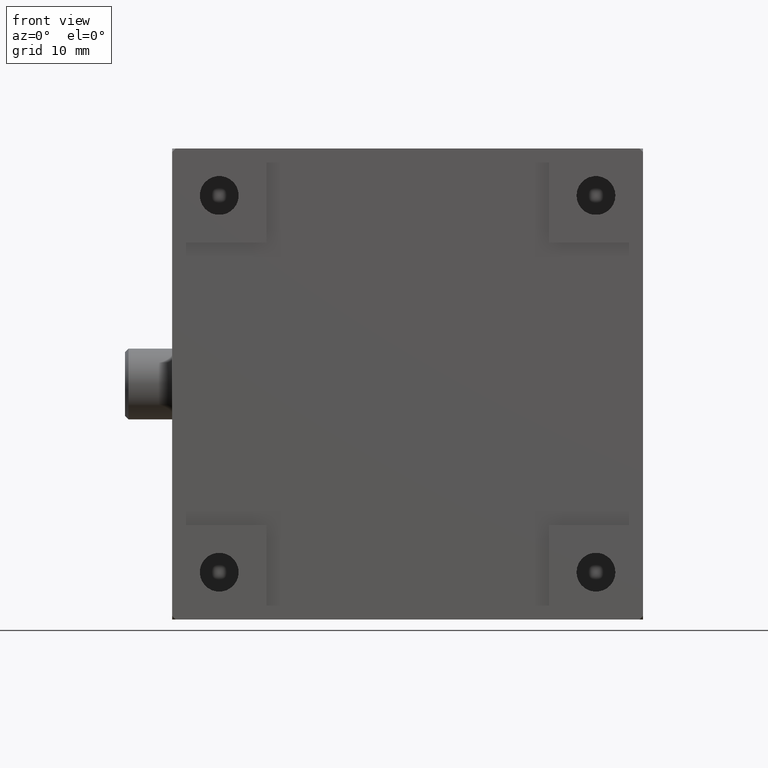
[diagram: clean part render]
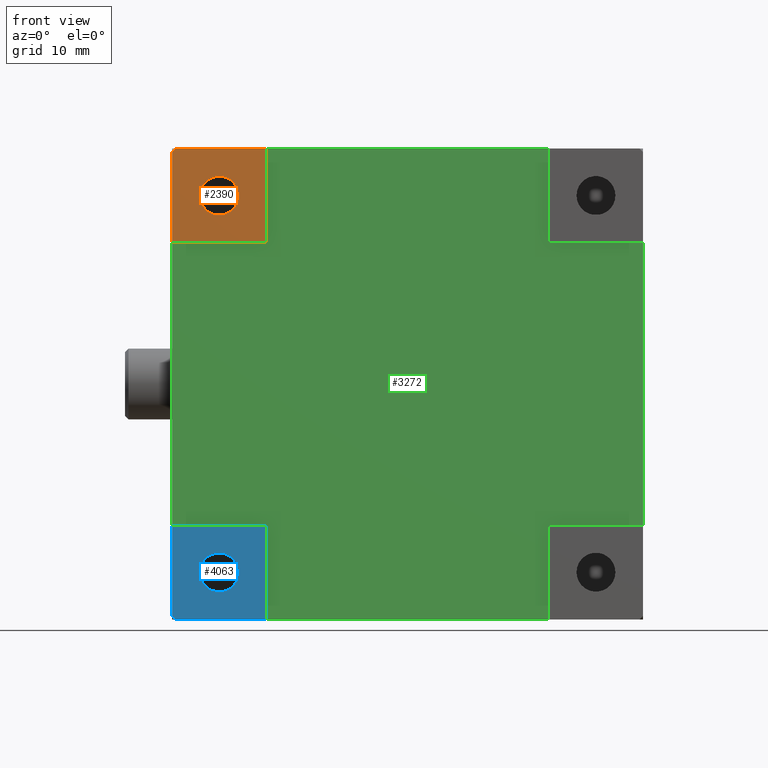
[diagram: same view with three faces highlighted in distinct colors, each labeled with its STEP entity id]
A machine part, front view with three faces highlighted in distinct colors.
Their STEP definitions:

[orange] entity #2390 — the highlighted planar face has unit normal (0, 1, 0).
#156 = EDGE_CURVE ( 'NONE', #1058, #532, #2311, .T. ) ;
#246 = EDGE_CURVE ( 'NONE', #692, #532, #2472, .T. ) ;
#301 = CARTESIAN_POINT ( 'NONE',  ( 8.000000000000000000, 0.000000000000000000, 32.00000000000000000 ) ) ;
#302 = CARTESIAN_POINT ( 'NONE',  ( -4.336808689942018722E-16, 0.000000000000000000, 39.69999999999999574 ) ) ;
#347 = AXIS2_PLACEMENT_3D ( 'NONE', #2180, #3741, #878 ) ;
#422 = PLANE ( 'NONE',  #347 ) ;
#467 = DIRECTION ( 'NONE',  ( -0.7071067811865510144, 0.000000000000000000, -0.7071067811865441310 ) ) ;
#470 = FACE_OUTER_BOUND ( 'NONE', #4639, .T. ) ;
#532 = VERTEX_POINT ( 'NONE', #1102 ) ;
#692 = VERTEX_POINT ( 'NONE', #4527 ) ;
#728 = CARTESIAN_POINT ( 'NONE',  ( 0.000000000000000000, 0.000000000000000000, 0.3000000000000109801 ) ) ;
#833 = CARTESIAN_POINT ( 'NONE',  ( 0.000000000000000000, 0.000000000000000000, 32.00000000000000000 ) ) ;
#878 = DIRECTION ( 'NONE',  ( -1.000000000000000000, 0.000000000000000000, 0.000000000000000000 ) ) ;
#1042 = LINE ( 'NONE', #301, #2109 ) ;
#1058 = VERTEX_POINT ( 'NONE', #302 ) ;
#1102 = CARTESIAN_POINT ( 'NONE',  ( 0.000000000000000000, 0.000000000000000000, 32.00000000000000000 ) ) ;
#1305 = ORIENTED_EDGE ( 'NONE', *, *, #2519, .F. ) ;
#1611 = VECTOR ( 'NONE', #467, 999.9999999999998863 ) ;
#1635 = VERTEX_POINT ( 'NONE', #3210 ) ;
#1665 = LINE ( 'NONE', #4881, #1611 ) ;
#1666 = DIRECTION ( 'NONE',  ( 1.000000000000000000, 0.000000000000000000, 0.000000000000000000 ) ) ;
#1777 = LINE ( 'NONE', #2564, #3516 ) ;
#1877 = CARTESIAN_POINT ( 'NONE',  ( 0.3000000000000093703, 0.000000000000000000, 40.00000000000000711 ) ) ;
#1878 = ORIENTED_EDGE ( 'NONE', *, *, #2211, .T. ) ;
#2109 = VECTOR ( 'NONE', #3484, 1000.000000000000000 ) ;
#2180 = CARTESIAN_POINT ( 'NONE',  ( 0.000000000000000000, 0.000000000000000000, 0.000000000000000000 ) ) ;
#2211 = EDGE_CURVE ( 'NONE', #2730, #3705, #1777, .T. ) ;
#2286 = DIRECTION ( 'NONE',  ( 0.000000000000000000, 0.000000000000000000, -1.000000000000000000 ) ) ;
#2311 = LINE ( 'NONE', #728, #4136 ) ;
#2390 = ADVANCED_FACE ( 'NONE', ( #470, #4809 ), #422, .F. ) ;
#2472 = LINE ( 'NONE', #833, #4632 ) ;
#2519 = EDGE_CURVE ( 'NONE', #2730, #692, #1042, .T. ) ;
#2564 = CARTESIAN_POINT ( 'NONE',  ( 0.3000000000000109801, 0.000000000000000000, 40.00000000000000000 ) ) ;
#2730 = VERTEX_POINT ( 'NONE', #3267 ) ;
#2962 = CARTESIAN_POINT ( 'NONE',  ( 4.000000000000000000, 0.000000000000000000, 36.00000000000000711 ) ) ;
#3011 = EDGE_CURVE ( 'NONE', #3705, #1058, #1665, .T. ) ;
#3042 = EDGE_LOOP ( 'NONE', ( #3504 ) ) ;
#3210 = CARTESIAN_POINT ( 'NONE',  ( 5.650000000000000355, 0.000000000000000000, 36.00000000000000711 ) ) ;
#3267 = CARTESIAN_POINT ( 'NONE',  ( 8.000000000000000000, 0.000000000000000000, 40.00000000000000000 ) ) ;
#3325 = CIRCLE ( 'NONE', #4651, 1.650000000000000355 ) ;
#3484 = DIRECTION ( 'NONE',  ( 0.000000000000000000, 0.000000000000000000, -1.000000000000000000 ) ) ;
#3504 = ORIENTED_EDGE ( 'NONE', *, *, #3900, .F. ) ;
#3516 = VECTOR ( 'NONE', #4887, 1000.000000000000000 ) ;
#3705 = VERTEX_POINT ( 'NONE', #1877 ) ;
#3741 = DIRECTION ( 'NONE',  ( 0.000000000000000000, 1.000000000000000000, 0.000000000000000000 ) ) ;
#3881 = ORIENTED_EDGE ( 'NONE', *, *, #3011, .T. ) ;
#3900 = EDGE_CURVE ( 'NONE', #1635, #1635, #3325, .T. ) ;
#3909 = ORIENTED_EDGE ( 'NONE', *, *, #246, .F. ) ;
#3969 = DIRECTION ( 'NONE',  ( -1.000000000000000000, 0.000000000000000000, 0.000000000000000000 ) ) ;
#4136 = VECTOR ( 'NONE', #2286, 1000.000000000000000 ) ;
#4206 = ORIENTED_EDGE ( 'NONE', *, *, #156, .T. ) ;
#4527 = CARTESIAN_POINT ( 'NONE',  ( 8.000000000000000000, 0.000000000000000000, 32.00000000000000000 ) ) ;
#4545 = DIRECTION ( 'NONE',  ( 0.000000000000000000, -1.000000000000000000, 0.000000000000000000 ) ) ;
#4632 = VECTOR ( 'NONE', #3969, 1000.000000000000000 ) ;
#4639 = EDGE_LOOP ( 'NONE', ( #1305, #1878, #3881, #4206, #3909 ) ) ;
#4651 = AXIS2_PLACEMENT_3D ( 'NONE', #2962, #4545, #1666 ) ;
#4809 = FACE_BOUND ( 'NONE', #3042, .T. ) ;
#4881 = CARTESIAN_POINT ( 'NONE',  ( 0.000000000000000000, 0.000000000000000000, 39.70000000000000284 ) ) ;
#4887 = DIRECTION ( 'NONE',  ( -1.000000000000000000, 0.000000000000000000, 0.000000000000000000 ) ) ;

[blue] entity #4063 — the highlighted planar face has unit normal (0, 1, 0).
#28 = DIRECTION ( 'NONE',  ( 0.7071067811865474617, 0.000000000000000000, -0.7071067811865474617 ) ) ;
#77 = DIRECTION ( 'NONE',  ( 1.000000000000000000, 0.000000000000000000, 0.000000000000000000 ) ) ;
#83 = LINE ( 'NONE', #4073, #314 ) ;
#108 = DIRECTION ( 'NONE',  ( 0.000000000000000000, 0.000000000000000000, -1.000000000000000000 ) ) ;
#314 = VECTOR ( 'NONE', #108, 1000.000000000000000 ) ;
#480 = EDGE_CURVE ( 'NONE', #2197, #2197, #4457, .T. ) ;
#617 = CARTESIAN_POINT ( 'NONE',  ( 8.000000000000000000, 0.000000000000000000, 8.000000000000000000 ) ) ;
#674 = VECTOR ( 'NONE', #2734, 1000.000000000000000 ) ;
#694 = ORIENTED_EDGE ( 'NONE', *, *, #1505, .T. ) ;
#742 = ORIENTED_EDGE ( 'NONE', *, *, #2585, .F. ) ;
#976 = EDGE_CURVE ( 'NONE', #4777, #2891, #3086, .T. ) ;
#1069 = DIRECTION ( 'NONE',  ( 1.000000000000000000, 0.000000000000000000, 0.000000000000000000 ) ) ;
#1126 = CARTESIAN_POINT ( 'NONE',  ( 0.3000000000000090927, -2.312964634635742661E-15, 3.269547176401599802E-16 ) ) ;
#1196 = CARTESIAN_POINT ( 'NONE',  ( 0.000000000000000000, 0.000000000000000000, 0.000000000000000000 ) ) ;
#1408 = EDGE_CURVE ( 'NONE', #2100, #2324, #3998, .T. ) ;
#1501 = CARTESIAN_POINT ( 'NONE',  ( 4.000000000000000000, 0.000000000000000000, 4.000000000000000000 ) ) ;
#1502 = CARTESIAN_POINT ( 'NONE',  ( -1.807003620809173954E-17, -2.312964634635742661E-15, 0.3000000000000109801 ) ) ;
#1505 = EDGE_CURVE ( 'NONE', #4777, #2100, #83, .T. ) ;
#1508 = CARTESIAN_POINT ( 'NONE',  ( 5.650000000000000355, 0.000000000000000000, 4.000000000000000000 ) ) ;
#1514 = CARTESIAN_POINT ( 'NONE',  ( 8.000000000000000000, 0.000000000000000000, 8.000000000000000000 ) ) ;
#1617 = AXIS2_PLACEMENT_3D ( 'NONE', #1196, #2035, #4296 ) ;
#1796 = PLANE ( 'NONE',  #1617 ) ;
#1896 = AXIS2_PLACEMENT_3D ( 'NONE', #1501, #4309, #2306 ) ;
#1925 = ORIENTED_EDGE ( 'NONE', *, *, #3520, .T. ) ;
#2035 = DIRECTION ( 'NONE',  ( 0.000000000000000000, 1.000000000000000000, 0.000000000000000000 ) ) ;
#2100 = VERTEX_POINT ( 'NONE', #1502 ) ;
#2155 = EDGE_LOOP ( 'NONE', ( #2194 ) ) ;
#2194 = ORIENTED_EDGE ( 'NONE', *, *, #480, .F. ) ;
#2197 = VERTEX_POINT ( 'NONE', #1508 ) ;
#2306 = DIRECTION ( 'NONE',  ( 1.000000000000000000, 0.000000000000000000, 0.000000000000000000 ) ) ;
#2324 = VERTEX_POINT ( 'NONE', #1126 ) ;
#2335 = VECTOR ( 'NONE', #77, 1000.000000000000000 ) ;
#2341 = LINE ( 'NONE', #2514, #2335 ) ;
#2514 = CARTESIAN_POINT ( 'NONE',  ( 39.70000000000000284, 0.000000000000000000, 0.000000000000000000 ) ) ;
#2562 = CARTESIAN_POINT ( 'NONE',  ( 0.000000000000000000, 0.000000000000000000, 8.000000000000000000 ) ) ;
#2585 = EDGE_CURVE ( 'NONE', #2891, #4725, #3918, .T. ) ;
#2734 = DIRECTION ( 'NONE',  ( 0.000000000000000000, 0.000000000000000000, -1.000000000000000000 ) ) ;
#2777 = CARTESIAN_POINT ( 'NONE',  ( 0.3000000000000109801, -6.938893903907228378E-15, 0.000000000000000000 ) ) ;
#2891 = VERTEX_POINT ( 'NONE', #617 ) ;
#3086 = LINE ( 'NONE', #1514, #4386 ) ;
#3227 = VECTOR ( 'NONE', #28, 1000.000000000000114 ) ;
#3520 = EDGE_CURVE ( 'NONE', #2324, #4725, #2341, .T. ) ;
#3918 = LINE ( 'NONE', #3978, #674 ) ;
#3978 = CARTESIAN_POINT ( 'NONE',  ( 8.000000000000000000, 0.000000000000000000, 0.000000000000000000 ) ) ;
#3988 = CARTESIAN_POINT ( 'NONE',  ( 8.000000000000000000, 0.000000000000000000, 0.000000000000000000 ) ) ;
#3998 = LINE ( 'NONE', #2777, #3227 ) ;
#4063 = ADVANCED_FACE ( 'NONE', ( #5005, #4983 ), #1796, .F. ) ;
#4073 = CARTESIAN_POINT ( 'NONE',  ( 0.000000000000000000, 0.000000000000000000, 0.3000000000000109801 ) ) ;
#4135 = ORIENTED_EDGE ( 'NONE', *, *, #976, .F. ) ;
#4296 = DIRECTION ( 'NONE',  ( -1.000000000000000000, 0.000000000000000000, 0.000000000000000000 ) ) ;
#4309 = DIRECTION ( 'NONE',  ( 0.000000000000000000, -1.000000000000000000, 0.000000000000000000 ) ) ;
#4386 = VECTOR ( 'NONE', #1069, 1000.000000000000000 ) ;
#4457 = CIRCLE ( 'NONE', #1896, 1.650000000000000355 ) ;
#4725 = VERTEX_POINT ( 'NONE', #3988 ) ;
#4777 = VERTEX_POINT ( 'NONE', #2562 ) ;
#4983 = FACE_BOUND ( 'NONE', #2155, .T. ) ;
#5005 = FACE_OUTER_BOUND ( 'NONE', #5062, .T. ) ;
#5062 = EDGE_LOOP ( 'NONE', ( #4135, #694, #5091, #1925, #742 ) ) ;
#5091 = ORIENTED_EDGE ( 'NONE', *, *, #1408, .T. ) ;

[green] entity #3272 — the highlighted planar face has unit normal (0, 1, 0).
#55 = VECTOR ( 'NONE', #4285, 1000.000000000000000 ) ;
#103 = VECTOR ( 'NONE', #2596, 1000.000000000000000 ) ;
#112 = LINE ( 'NONE', #436, #3061 ) ;
#133 = CARTESIAN_POINT ( 'NONE',  ( 32.00000000000000000, 0.5000000000000000000, 8.000000000000000000 ) ) ;
#269 = EDGE_CURVE ( 'NONE', #659, #1510, #4393, .T. ) ;
#279 = EDGE_CURVE ( 'NONE', #4810, #4620, #4743, .T. ) ;
#336 = CARTESIAN_POINT ( 'NONE',  ( 0.000000000000000000, 0.5000000000000004441, 8.000000000000000000 ) ) ;
#350 = DIRECTION ( 'NONE',  ( -0.000000000000000000, -0.000000000000000000, -1.000000000000000000 ) ) ;
#375 = DIRECTION ( 'NONE',  ( -1.000000000000000000, 0.000000000000000000, 0.000000000000000000 ) ) ;
#384 = ORIENTED_EDGE ( 'NONE', *, *, #3133, .F. ) ;
#433 = DIRECTION ( 'NONE',  ( -0.000000000000000000, -0.000000000000000000, -1.000000000000000000 ) ) ;
#436 = CARTESIAN_POINT ( 'NONE',  ( 0.000000000000000000, 0.5000000000000000000, 32.00000000000000000 ) ) ;
#500 = CARTESIAN_POINT ( 'NONE',  ( 0.000000000000000000, 0.5000000000000002220, 32.00000000000000000 ) ) ;
#507 = EDGE_CURVE ( 'NONE', #4546, #3506, #4609, .T. ) ;
#645 = VERTEX_POINT ( 'NONE', #1723 ) ;
#659 = VERTEX_POINT ( 'NONE', #500 ) ;
#687 = VERTEX_POINT ( 'NONE', #133 ) ;
#716 = CARTESIAN_POINT ( 'NONE',  ( 40.00000000000000000, 0.5000000000000001110, 32.00000000000000000 ) ) ;
#734 = VECTOR ( 'NONE', #1490, 1000.000000000000000 ) ;
#771 = ORIENTED_EDGE ( 'NONE', *, *, #3499, .F. ) ;
#847 = ORIENTED_EDGE ( 'NONE', *, *, #4821, .F. ) ;
#965 = VERTEX_POINT ( 'NONE', #2251 ) ;
#1083 = EDGE_CURVE ( 'NONE', #1510, #4546, #2320, .T. ) ;
#1152 = LINE ( 'NONE', #3899, #3353 ) ;
#1218 = CARTESIAN_POINT ( 'NONE',  ( 40.00000000000000000, 0.5000000000000000000, 0.000000000000000000 ) ) ;
#1415 = CARTESIAN_POINT ( 'NONE',  ( 0.000000000000000000, 0.5000000000000000000, 8.000000000000000000 ) ) ;
#1490 = DIRECTION ( 'NONE',  ( 0.000000000000000000, 0.000000000000000000, 1.000000000000000000 ) ) ;
#1510 = VERTEX_POINT ( 'NONE', #2902 ) ;
#1654 = DIRECTION ( 'NONE',  ( 1.000000000000000000, -0.000000000000000000, -0.000000000000000000 ) ) ;
#1658 = AXIS2_PLACEMENT_3D ( 'NONE', #4050, #2520, #3261 ) ;
#1723 = CARTESIAN_POINT ( 'NONE',  ( 8.000000000000000000, 0.5000000000000002220, 0.000000000000000000 ) ) ;
#1747 = VERTEX_POINT ( 'NONE', #336 ) ;
#1869 = ORIENTED_EDGE ( 'NONE', *, *, #2261, .F. ) ;
#1932 = DIRECTION ( 'NONE',  ( 0.000000000000000000, 0.000000000000000000, 1.000000000000000000 ) ) ;
#1959 = VECTOR ( 'NONE', #350, 1000.000000000000000 ) ;
#2007 = CARTESIAN_POINT ( 'NONE',  ( 0.000000000000000000, 0.5000000000000000000, 0.000000000000000000 ) ) ;
#2016 = ORIENTED_EDGE ( 'NONE', *, *, #3264, .F. ) ;
#2251 = CARTESIAN_POINT ( 'NONE',  ( 32.00000000000000000, 0.5000000000000000000, 32.00000000000000000 ) ) ;
#2261 = EDGE_CURVE ( 'NONE', #4620, #687, #4466, .T. ) ;
#2264 = CARTESIAN_POINT ( 'NONE',  ( 32.00000000000000000, 0.5000000000000000000, 0.000000000000000000 ) ) ;
#2320 = LINE ( 'NONE', #3891, #734 ) ;
#2520 = DIRECTION ( 'NONE',  ( 0.000000000000000000, 1.000000000000000000, 0.000000000000000000 ) ) ;
#2581 = VECTOR ( 'NONE', #4638, 1000.000000000000000 ) ;
#2596 = DIRECTION ( 'NONE',  ( -0.000000000000000000, -0.000000000000000000, -1.000000000000000000 ) ) ;
#2653 = VECTOR ( 'NONE', #375, 1000.000000000000000 ) ;
#2721 = CARTESIAN_POINT ( 'NONE',  ( 32.00000000000000000, 0.5000000000000002220, 40.00000000000000000 ) ) ;
#2807 = DIRECTION ( 'NONE',  ( 0.000000000000000000, 0.000000000000000000, 1.000000000000000000 ) ) ;
#2819 = ORIENTED_EDGE ( 'NONE', *, *, #507, .F. ) ;
#2902 = CARTESIAN_POINT ( 'NONE',  ( 8.000000000000000000, 0.5000000000000000000, 32.00000000000000000 ) ) ;
#3061 = VECTOR ( 'NONE', #3211, 1000.000000000000000 ) ;
#3133 = EDGE_CURVE ( 'NONE', #3506, #965, #4229, .T. ) ;
#3138 = VECTOR ( 'NONE', #1654, 1000.000000000000000 ) ;
#3208 = CARTESIAN_POINT ( 'NONE',  ( 0.000000000000000000, 0.5000000000000000000, 32.00000000000000000 ) ) ;
#3211 = DIRECTION ( 'NONE',  ( 1.000000000000000000, -0.000000000000000000, -0.000000000000000000 ) ) ;
#3261 = DIRECTION ( 'NONE',  ( -1.000000000000000000, 0.000000000000000000, 0.000000000000000000 ) ) ;
#3262 = ORIENTED_EDGE ( 'NONE', *, *, #4429, .F. ) ;
#3264 = EDGE_CURVE ( 'NONE', #965, #4810, #112, .T. ) ;
#3272 = ADVANCED_FACE ( 'NONE', ( #3601 ), #4023, .F. ) ;
#3353 = VECTOR ( 'NONE', #1932, 1000.000000000000000 ) ;
#3392 = EDGE_CURVE ( 'NONE', #4824, #1747, #3908, .T. ) ;
#3468 = CARTESIAN_POINT ( 'NONE',  ( 40.00000000000000000, 0.5000000000000002220, 8.000000000000000000 ) ) ;
#3499 = EDGE_CURVE ( 'NONE', #5129, #645, #3966, .T. ) ;
#3505 = LINE ( 'NONE', #2007, #4599 ) ;
#3506 = VERTEX_POINT ( 'NONE', #2721 ) ;
#3580 = ORIENTED_EDGE ( 'NONE', *, *, #4069, .F. ) ;
#3588 = ORIENTED_EDGE ( 'NONE', *, *, #279, .F. ) ;
#3601 = FACE_OUTER_BOUND ( 'NONE', #4396, .T. ) ;
#3891 = CARTESIAN_POINT ( 'NONE',  ( 8.000000000000000000, 0.5000000000000000000, 0.000000000000000000 ) ) ;
#3899 = CARTESIAN_POINT ( 'NONE',  ( 8.000000000000000000, 0.5000000000000000000, 0.000000000000000000 ) ) ;
#3905 = CARTESIAN_POINT ( 'NONE',  ( 0.000000000000000000, 0.5000000000000000000, 40.00000000000000000 ) ) ;
#3908 = LINE ( 'NONE', #3936, #2653 ) ;
#3922 = CARTESIAN_POINT ( 'NONE',  ( 8.000000000000000000, 0.5000000000000000000, 8.000000000000000000 ) ) ;
#3936 = CARTESIAN_POINT ( 'NONE',  ( 0.000000000000000000, 0.5000000000000000000, 8.000000000000000000 ) ) ;
#3966 = LINE ( 'NONE', #5145, #2581 ) ;
#4023 = PLANE ( 'NONE',  #1658 ) ;
#4026 = ORIENTED_EDGE ( 'NONE', *, *, #3392, .F. ) ;
#4050 = CARTESIAN_POINT ( 'NONE',  ( 0.000000000000000000, 0.5000000000000000000, 0.000000000000000000 ) ) ;
#4069 = EDGE_CURVE ( 'NONE', #1747, #659, #3505, .T. ) ;
#4215 = VECTOR ( 'NONE', #433, 1000.000000000000000 ) ;
#4224 = CARTESIAN_POINT ( 'NONE',  ( 32.00000000000000000, 0.5000000000000002220, 0.000000000000000000 ) ) ;
#4229 = LINE ( 'NONE', #2264, #103 ) ;
#4285 = DIRECTION ( 'NONE',  ( 1.000000000000000000, -0.000000000000000000, -0.000000000000000000 ) ) ;
#4329 = VECTOR ( 'NONE', #4908, 1000.000000000000000 ) ;
#4393 = LINE ( 'NONE', #3208, #3138 ) ;
#4396 = EDGE_LOOP ( 'NONE', ( #1869, #3588, #2016, #384, #2819, #5017, #4724, #3580, #4026, #847, #771, #3262 ) ) ;
#4429 = EDGE_CURVE ( 'NONE', #687, #5129, #5146, .T. ) ;
#4466 = LINE ( 'NONE', #1415, #4329 ) ;
#4546 = VERTEX_POINT ( 'NONE', #4581 ) ;
#4581 = CARTESIAN_POINT ( 'NONE',  ( 8.000000000000000000, 0.5000000000000001110, 40.00000000000000000 ) ) ;
#4599 = VECTOR ( 'NONE', #2807, 1000.000000000000000 ) ;
#4609 = LINE ( 'NONE', #3905, #55 ) ;
#4620 = VERTEX_POINT ( 'NONE', #3468 ) ;
#4638 = DIRECTION ( 'NONE',  ( -1.000000000000000000, 0.000000000000000000, 0.000000000000000000 ) ) ;
#4720 = CARTESIAN_POINT ( 'NONE',  ( 32.00000000000000000, 0.5000000000000000000, 0.000000000000000000 ) ) ;
#4724 = ORIENTED_EDGE ( 'NONE', *, *, #269, .F. ) ;
#4743 = LINE ( 'NONE', #1218, #4215 ) ;
#4810 = VERTEX_POINT ( 'NONE', #716 ) ;
#4821 = EDGE_CURVE ( 'NONE', #645, #4824, #1152, .T. ) ;
#4824 = VERTEX_POINT ( 'NONE', #3922 ) ;
#4908 = DIRECTION ( 'NONE',  ( -1.000000000000000000, 0.000000000000000000, 0.000000000000000000 ) ) ;
#5017 = ORIENTED_EDGE ( 'NONE', *, *, #1083, .F. ) ;
#5129 = VERTEX_POINT ( 'NONE', #4224 ) ;
#5145 = CARTESIAN_POINT ( 'NONE',  ( 0.000000000000000000, 0.5000000000000000000, 0.000000000000000000 ) ) ;
#5146 = LINE ( 'NONE', #4720, #1959 ) ;